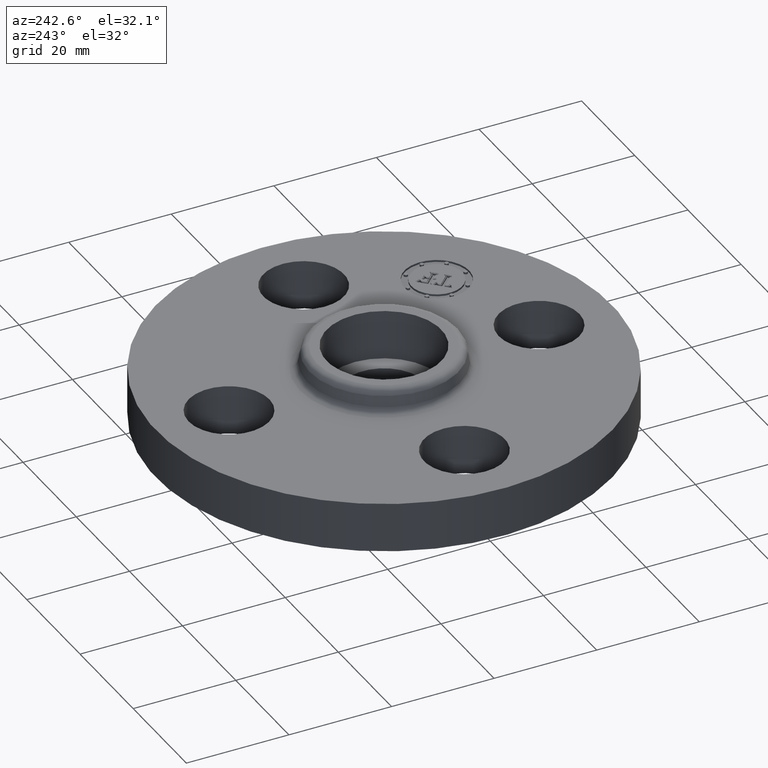
[diagram: clean part render]
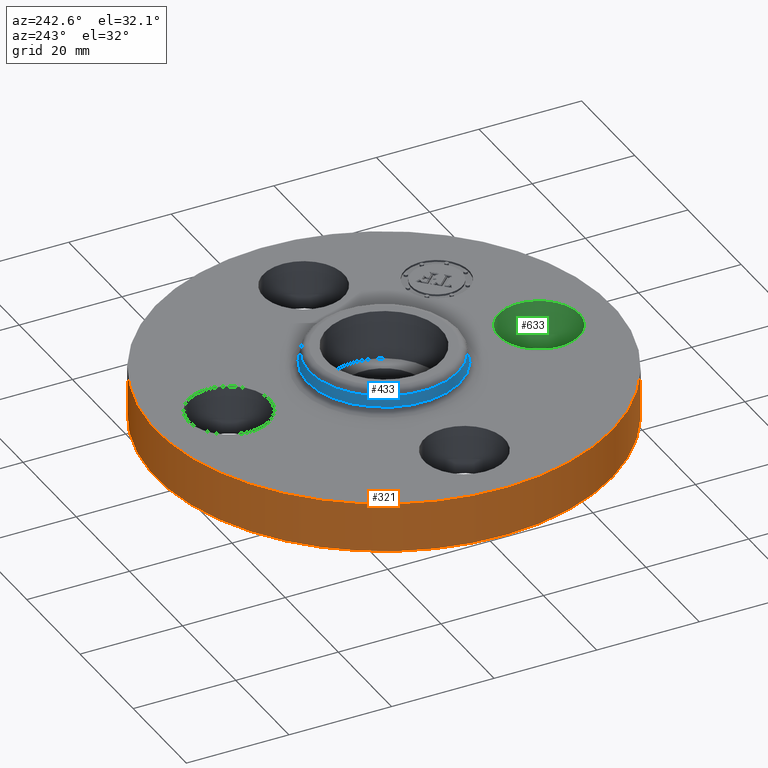
[diagram: same view with three faces highlighted in distinct colors, each labeled with its STEP entity id]
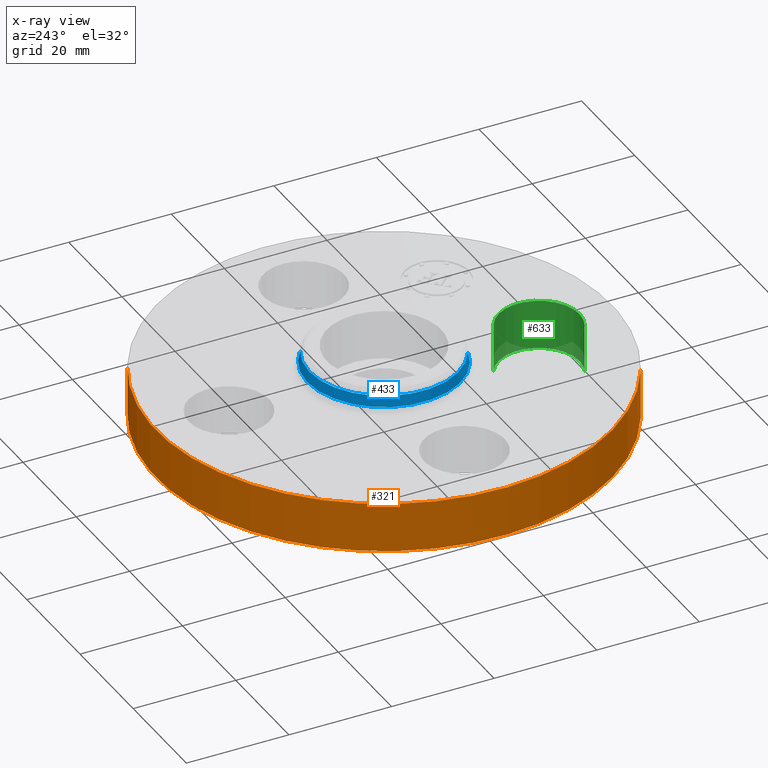
[diagram: x-ray of the same camera — body ghosted, the three highlighted faces saturated]
A machine part, auxiliary view with three faces highlighted in distinct colors.
The next image is the same camera in x-ray (body ghosted, the three faces saturated) — at least one of them is partly hidden behind the body in this view.
Their STEP definitions:

[orange] entity #321 — the highlighted cylindrical surface (partial cylindrical patch) has radius 44.45 mm, axis along (0, 0, -1).
#198=AXIS2_PLACEMENT_3D('Circle Axis2P3D',#196,#197,$) ;
#294=AXIS2_PLACEMENT_3D('Cylinder Axis2P3D',#291,#292,#293) ;
#305=AXIS2_PLACEMENT_3D('Circle Axis2P3D',#303,#304,$) ;
#196=CARTESIAN_POINT('Axis2P3D Location',(0.,0.,0.)) ;
#200=CARTESIAN_POINT('Vertex',(-0.838994692561,-1.53576948331,1.39870617276E-016)) ;
#202=CARTESIAN_POINT('Vertex',(0.838994692561,1.53576948331,1.39870617276E-016)) ;
#291=CARTESIAN_POINT('Axis2P3D Location',(0.,0.,0.248750000001)) ;
#296=CARTESIAN_POINT('Line Origine',(-0.838994692561,-1.53576948331,0.190000000001)) ;
#300=CARTESIAN_POINT('Vertex',(-0.838994692561,-1.53576948331,0.380000000002)) ;
#303=CARTESIAN_POINT('Axis2P3D Location',(0.,0.,0.380000000002)) ;
#307=CARTESIAN_POINT('Vertex',(0.838994692561,1.53576948331,0.380000000002)) ;
#310=CARTESIAN_POINT('Line Origine',(0.838994692561,1.53576948331,0.190000000001)) ;
#197=DIRECTION('Axis2P3D Direction',(0.,0.,-0.0393700787402)) ;
#292=DIRECTION('Axis2P3D Direction',(0.,0.,-0.0393700787402)) ;
#293=DIRECTION('Axis2P3D XDirection',(0.0188750212049,0.0345504945626,0.)) ;
#297=DIRECTION('Vector Direction',(0.,0.,-0.0393700787402)) ;
#304=DIRECTION('Axis2P3D Direction',(0.,0.,-0.0393700787402)) ;
#311=DIRECTION('Vector Direction',(0.,0.,-0.0393700787402)) ;
#298=VECTOR('Line Direction',#297,0.0393700787402) ;
#312=VECTOR('Line Direction',#311,0.0393700787402) ;
#316=ORIENTED_EDGE('',*,*,#204,.F.) ;
#317=ORIENTED_EDGE('',*,*,#302,.T.) ;
#318=ORIENTED_EDGE('',*,*,#309,.T.) ;
#319=ORIENTED_EDGE('',*,*,#314,.F.) ;
#321=ADVANCED_FACE('PartBody',(#320),#295,.T.) ;
#199=CIRCLE('generated circle',#198,1.75000000001) ;
#306=CIRCLE('generated circle',#305,1.75000000001) ;
#295=CYLINDRICAL_SURFACE('generated cylinder',#294,1.75000000001) ;
#204=EDGE_CURVE('',#201,#203,#199,.T.) ;
#302=EDGE_CURVE('',#201,#301,#299,.F.) ;
#309=EDGE_CURVE('',#301,#308,#306,.T.) ;
#314=EDGE_CURVE('',#203,#308,#313,.F.) ;
#315=EDGE_LOOP('',(#316,#317,#318,#319)) ;
#320=FACE_OUTER_BOUND('',#315,.T.) ;
#299=LINE('Line',#296,#298) ;
#313=LINE('Line',#310,#312) ;
#201=VERTEX_POINT('',#200) ;
#203=VERTEX_POINT('',#202) ;
#301=VERTEX_POINT('',#300) ;
#308=VERTEX_POINT('',#307) ;

[blue] entity #433 — the highlighted conical surface has half-angle 10 deg.
#381=AXIS2_PLACEMENT_3D('Circle Axis2P3D',#379,#380,$) ;
#394=AXIS2_PLACEMENT_3D('Cone Axis2P3D',#391,#392,#393) ;
#424=AXIS2_PLACEMENT_3D('Circle Axis2P3D',#422,#423,$) ;
#352=CARTESIAN_POINT('Vertex',(0.281066823783,0.514489369916,0.429581109342)) ;
#359=CARTESIAN_POINT('Vertex',(-0.281066823783,-0.514489369916,0.429581109342)) ;
#379=CARTESIAN_POINT('Axis2P3D Location',(0.,0.,0.429581109342)) ;
#391=CARTESIAN_POINT('Axis2P3D Location',(0.,0.,0.510418890662)) ;
#396=CARTESIAN_POINT('Line Origine',(0.277649986278,0.508234890815,0.470000000002)) ;
#400=CARTESIAN_POINT('Vertex',(0.274233148773,0.501980411715,0.510418890662)) ;
#407=CARTESIAN_POINT('Vertex',(-0.274233148773,-0.501980411715,0.510418890662)) ;
#410=CARTESIAN_POINT('Line Origine',(-0.277649986278,-0.508234890815,0.470000000002)) ;
#422=CARTESIAN_POINT('Axis2P3D Location',(0.,0.,0.510418890662)) ;
#380=DIRECTION('Axis2P3D Direction',(0.,0.,-0.0393700787402)) ;
#392=DIRECTION('Axis2P3D Direction',(0.,0.,-0.0393700787402)) ;
#393=DIRECTION('Axis2P3D XDirection',(-0.0188750212049,-0.0345504945626,0.)) ;
#397=DIRECTION('Vector Direction',(0.00327761303565,0.00599963041829,-0.03877195878)) ;
#411=DIRECTION('Vector Direction',(-0.00327761303565,-0.00599963041829,-0.03877195878)) ;
#423=DIRECTION('Axis2P3D Direction',(0.,0.,-0.0393700787402)) ;
#398=VECTOR('Line Direction',#397,0.0393700787402) ;
#412=VECTOR('Line Direction',#411,0.0393700787402) ;
#428=ORIENTED_EDGE('',*,*,#383,.F.) ;
#429=ORIENTED_EDGE('',*,*,#414,.T.) ;
#430=ORIENTED_EDGE('',*,*,#426,.T.) ;
#431=ORIENTED_EDGE('',*,*,#402,.F.) ;
#433=ADVANCED_FACE('PartBody',(#432),#395,.T.) ;
#382=CIRCLE('generated circle',#381,0.586257512692) ;
#425=CIRCLE('generated circle',#424,0.572003630785) ;
#395=CONICAL_SURFACE('Cone',#394,0.572003630785,0.174532925199) ;
#383=EDGE_CURVE('',#360,#353,#382,.T.) ;
#402=EDGE_CURVE('',#353,#401,#399,.F.) ;
#414=EDGE_CURVE('',#360,#408,#413,.F.) ;
#426=EDGE_CURVE('',#408,#401,#425,.T.) ;
#427=EDGE_LOOP('',(#428,#429,#430,#431)) ;
#432=FACE_OUTER_BOUND('',#427,.T.) ;
#399=LINE('Line',#396,#398) ;
#413=LINE('Line',#410,#412) ;
#353=VERTEX_POINT('',#352) ;
#360=VERTEX_POINT('',#359) ;
#401=VERTEX_POINT('',#400) ;
#408=VERTEX_POINT('',#407) ;

[green] entity #633 — the highlighted cylindrical surface (partial cylindrical patch) has radius 7.874 mm, axis along (0, -0, -1).
#238=AXIS2_PLACEMENT_3D('Circle Axis2P3D',#236,#237,$) ;
#594=AXIS2_PLACEMENT_3D('Cylinder Axis2P3D',#591,#592,#593) ;
#624=AXIS2_PLACEMENT_3D('Circle Axis2P3D',#622,#623,$) ;
#236=CARTESIAN_POINT('Axis2P3D Location',(1.39870617276E-016,-1.19,0.)) ;
#240=CARTESIAN_POINT('Vertex',(0.148621916968,-0.917949405818,0.)) ;
#242=CARTESIAN_POINT('Vertex',(-0.148621916968,-1.46205059419,0.)) ;
#591=CARTESIAN_POINT('Axis2P3D Location',(-6.70041327261E-017,-1.19,0.376062992128)) ;
#596=CARTESIAN_POINT('Line Origine',(-0.148621916968,-1.46205059419,0.190000000001)) ;
#600=CARTESIAN_POINT('Vertex',(-0.148621916968,-1.46205059419,0.380000000002)) ;
#603=CARTESIAN_POINT('Line Origine',(0.148621916968,-0.917949405818,0.190000000001)) ;
#607=CARTESIAN_POINT('Vertex',(0.148621916968,-0.917949405818,0.380000000002)) ;
#622=CARTESIAN_POINT('Axis2P3D Location',(-6.70041327261E-017,-1.19,0.380000000002)) ;
#237=DIRECTION('Axis2P3D Direction',(0.,0.,-0.0393700787402)) ;
#592=DIRECTION('Axis2P3D Direction',(0.,-0.,-0.0393700787402)) ;
#593=DIRECTION('Axis2P3D XDirection',(0.0188750212049,0.0345504945626,-0.)) ;
#597=DIRECTION('Vector Direction',(0.,0.,-0.0393700787402)) ;
#604=DIRECTION('Vector Direction',(0.,0.,-0.0393700787402)) ;
#623=DIRECTION('Axis2P3D Direction',(0.,-0.,-0.0393700787402)) ;
#598=VECTOR('Line Direction',#597,0.0393700787402) ;
#605=VECTOR('Line Direction',#604,0.0393700787402) ;
#628=ORIENTED_EDGE('',*,*,#609,.F.) ;
#629=ORIENTED_EDGE('',*,*,#244,.T.) ;
#630=ORIENTED_EDGE('',*,*,#602,.T.) ;
#631=ORIENTED_EDGE('',*,*,#626,.F.) ;
#633=ADVANCED_FACE('PartBody',(#632),#595,.F.) ;
#239=CIRCLE('generated circle',#238,0.310000000001) ;
#625=CIRCLE('generated circle',#624,0.310000000001) ;
#595=CYLINDRICAL_SURFACE('generated cylinder',#594,0.310000000001) ;
#244=EDGE_CURVE('',#241,#243,#239,.T.) ;
#602=EDGE_CURVE('',#243,#601,#599,.F.) ;
#609=EDGE_CURVE('',#241,#608,#606,.F.) ;
#626=EDGE_CURVE('',#608,#601,#625,.T.) ;
#627=EDGE_LOOP('',(#628,#629,#630,#631)) ;
#632=FACE_OUTER_BOUND('',#627,.T.) ;
#599=LINE('Line',#596,#598) ;
#606=LINE('Line',#603,#605) ;
#241=VERTEX_POINT('',#240) ;
#243=VERTEX_POINT('',#242) ;
#601=VERTEX_POINT('',#600) ;
#608=VERTEX_POINT('',#607) ;